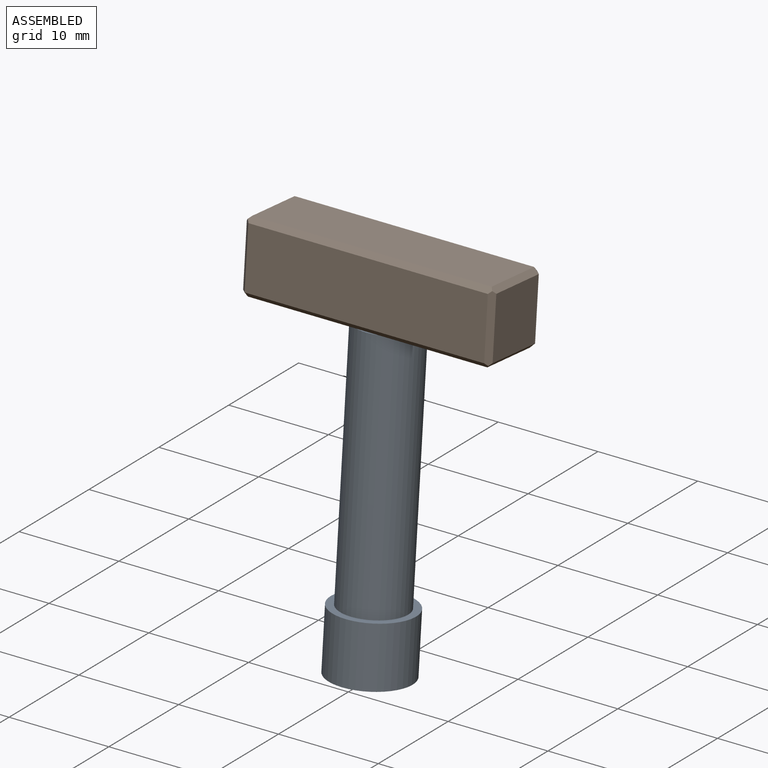
[diagram: assembled view]
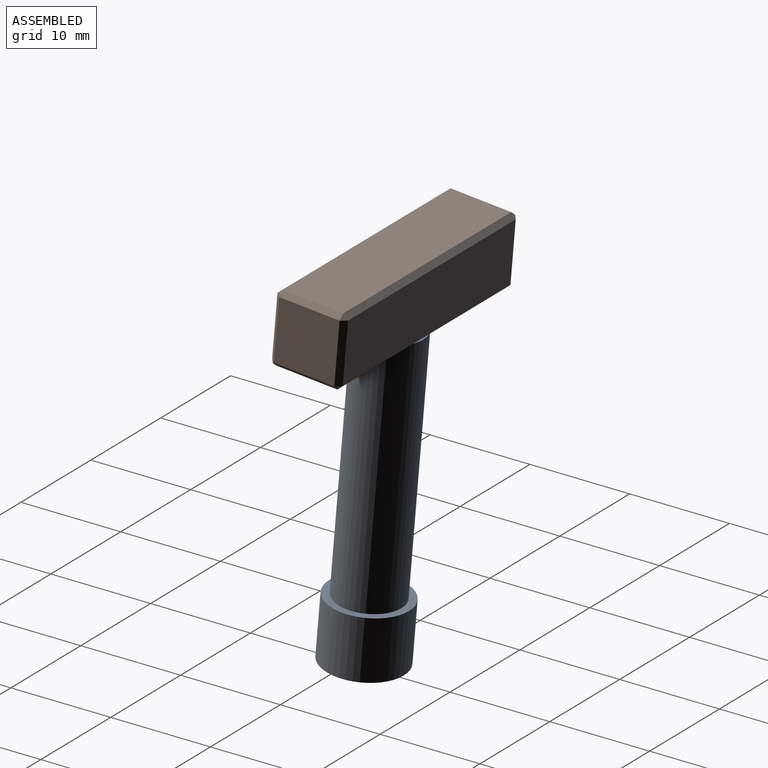
[diagram: assembled view, second angle]
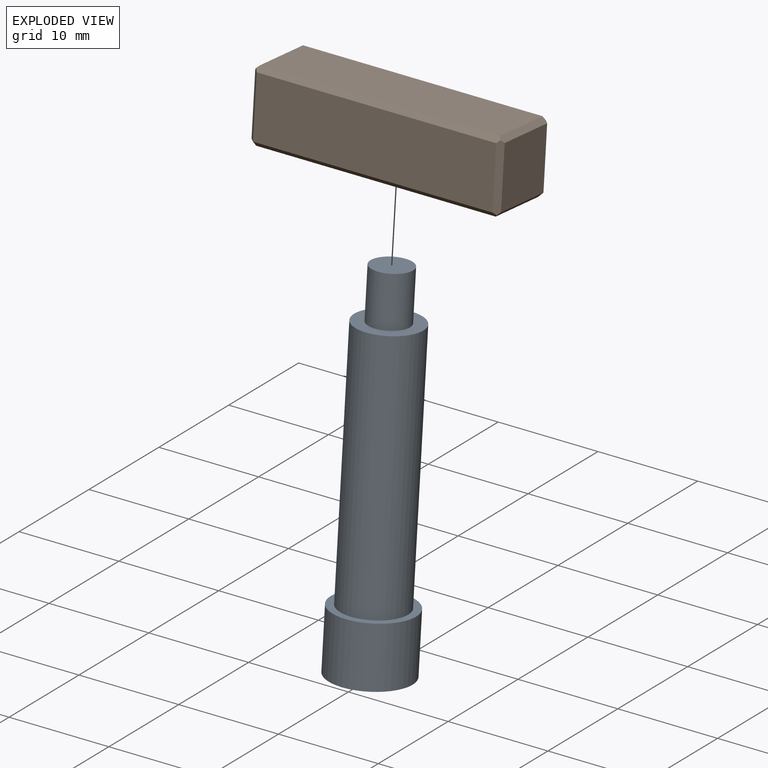
[diagram: exploded view]
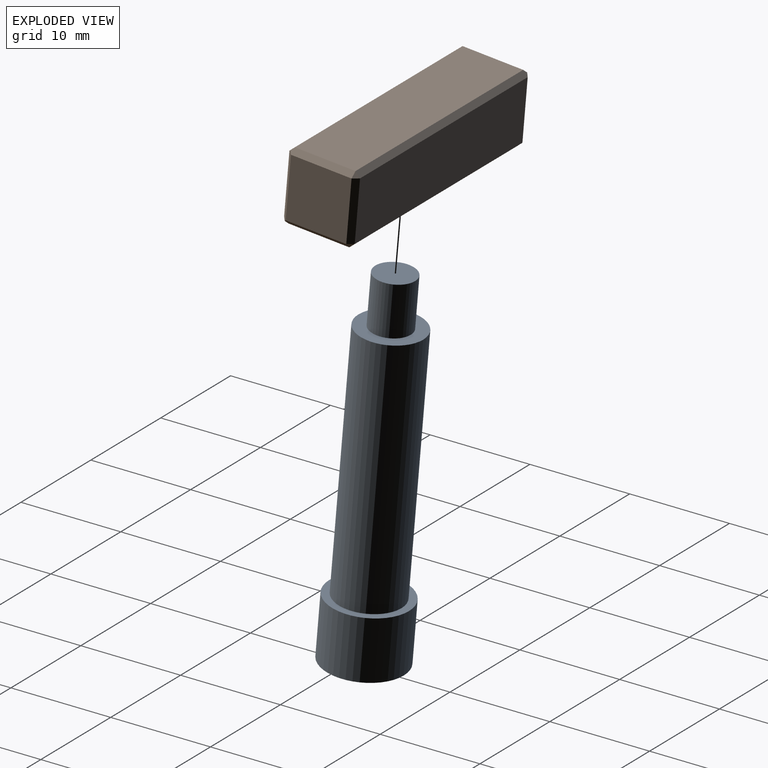
[diagram: exploded view, second angle]
ASSEMBLY  parts=2 mates=2
PART A: 7 faces, bbox 8x36x8 mm
  f0: cylinder r=4mm len=8mm, axis (0,1,0), area 150.8mm2, adj f1,f2
  f1: plane 8x8mm, normal (0,-1,0), area 17.1mm2, adj f0,f3
  f2: plane 8x8mm, normal (0,1,0), area 50.3mm2, adj f0
  f3: cylinder r=3.25mm len=25mm, axis (0,1,0), area 510.5mm2, adj f1,f4
  f4: plane 6.5x6.5mm, normal (0,-1,0), area 20.6mm2, adj f3,f5
  f5: cylinder r=2mm len=5mm, axis (0,1,0), area 62.8mm2, adj f4,f6
  f6: plane 4x4mm, normal (0,-1,0), area 12.6mm2, adj f5
PART B: 24 faces, bbox 25x7.1x7.1 mm
  f0: plane 24x6.1mm, normal (0,0,1), area 146.4mm2, adj f6,f14,f17,f20
  f1: plane 6.1x6.1mm, normal (-1,0,0), area 37.2mm2, adj f10,f16,f19,f20
  f2: plane 24x6.1mm, normal (0,0,-1), area 133.8mm2, adj f9,f12,f15,f16,f22
  f3: plane 6.1x6.1mm, normal (1,0,0), area 37.2mm2, adj f7,f12,f14,f21
  f4: plane 24x6.1mm, normal (0,-1,0), area 146.4mm2, adj f15,f17,f19,f21
  f5: plane 24x6.1mm, normal (0,1,0), area 146.4mm2, adj f6,f7,f9,f10
  f6: plane 24.25x0.5mm, normal (0,0.71,0.71), area 17.1mm2, adj f0,f5,f10,f11,f20
  f7: plane 6.1x0.5mm, normal (0.71,0.71,0), area 4.3mm2, adj f3,f5,f8,f11
  f8: plane 0.5x0.5mm, normal (0.58,0.58,-0.58), area 0.2mm2, adj f7,f9,f12
  f9: plane 24x0.5mm, normal (0,0.71,-0.71), area 17mm2, adj f2,f5,f8,f13
  f10: plane 6.35x0.5mm, normal (-0.71,0.71,0), area 4.4mm2, adj f1,f5,f6,f13,f20
  f11: plane 0.5x0.5mm, normal (0.58,0.58,0.58), area 0.2mm2, adj f6,f7,f14
  f12: plane 6.35x0.5mm, normal (0.71,0,-0.71), area 4.4mm2, adj f2,f3,f8,f15,f21
  f13: plane 0.5x0.5mm, normal (-0.58,0.58,-0.58), area 0.2mm2, adj f9,f10,f16
  f14: plane 6.35x0.5mm, normal (0.71,0,0.71), area 4.4mm2, adj f0,f3,f11,f17,f21
  f15: plane 24.25x0.5mm, normal (0,-0.71,-0.71), area 17.1mm2, adj f2,f4,f12,f18,f21
  f16: plane 6.1x0.5mm, normal (-0.71,0,-0.71), area 4.3mm2, adj f1,f2,f13,f18
  f17: plane 24.5x0.5mm, normal (0,-0.71,0.71), area 17.1mm2, adj f0,f4,f14,f19,f20,f21
  f18: plane 0.5x0.5mm, normal (-0.58,-0.58,-0.58), area 0.2mm2, adj f15,f16,f19
  f19: plane 6.35x0.5mm, normal (-0.71,-0.71,0), area 4.4mm2, adj f1,f4,f17,f18,f20
  f20: plane 6.6x0.5mm, normal (-0.71,0,0.71), area 4.5mm2, adj f0,f1,f6,f10,f17,f19
  f21: plane 6.6x0.5mm, normal (0.71,-0.71,0), area 4.5mm2, adj f3,f4,f12,f14,f15,f17
  f22: cylinder r=2mm len=5mm, axis (0,0,-1), area 62.8mm2, adj f2,f23
  f23: plane 4x4mm, normal (0,0,-1), area 12.6mm2, adj f22
PLACE A rot(axis=(-1,0,0),95deg) t=(10.8,1.94,-51.49)mm
PLACE B rot(axis=(-1,0,0),5deg) t=(5.1,8.13,-21.51)mm
MATE planar B.f22 <-> A.f5  axis (0,-0.09,-1) through (10.8,5.08,-15.62)mm
MATE cylindrical B.f22 <-> A.f5  axis (0,-0.09,-1) through (10.8,4.64,-20.6)mm
